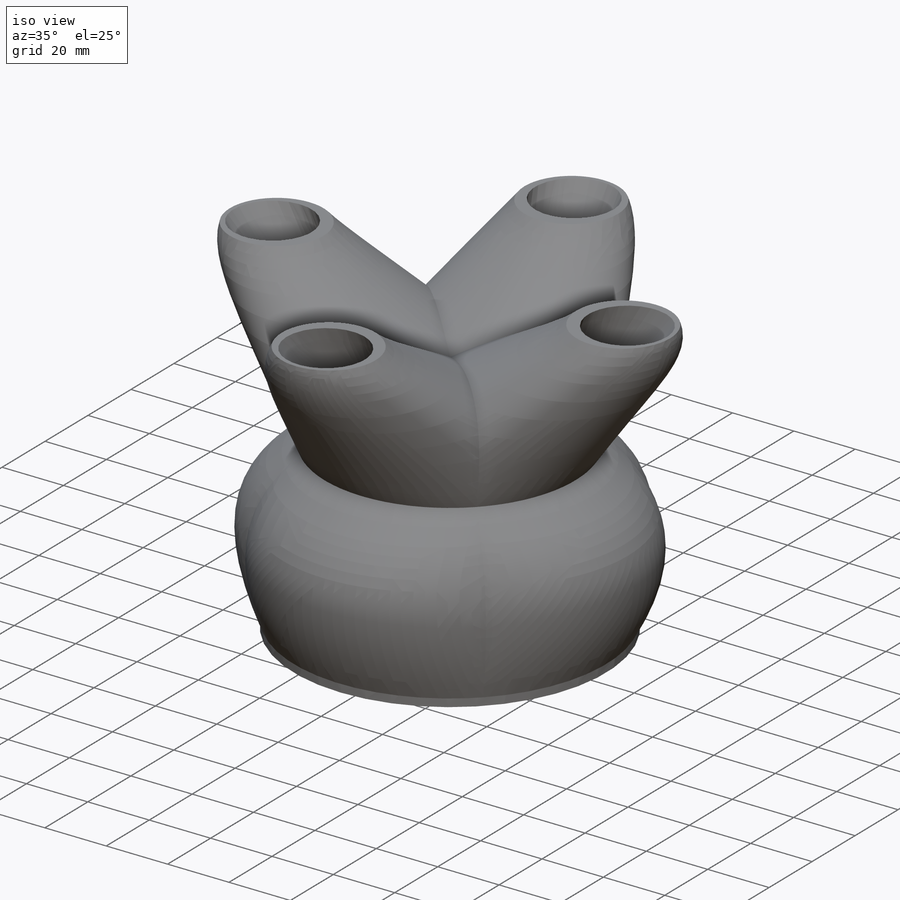
[diagram: iso view]
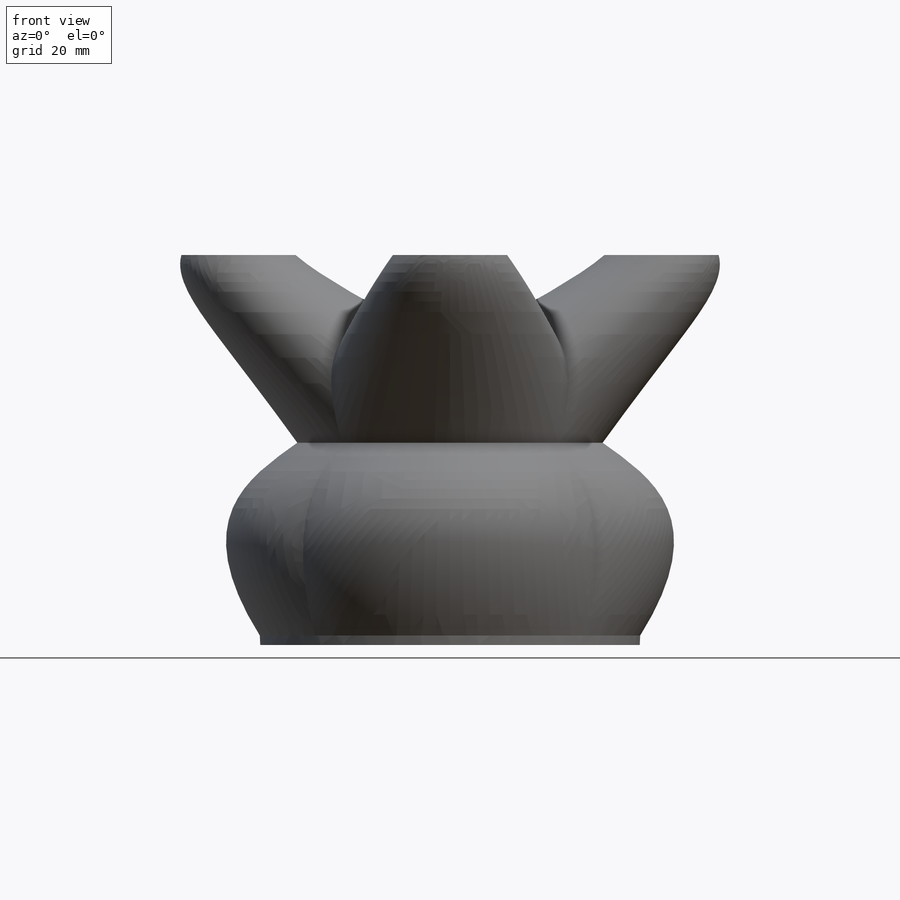
[diagram: front view]
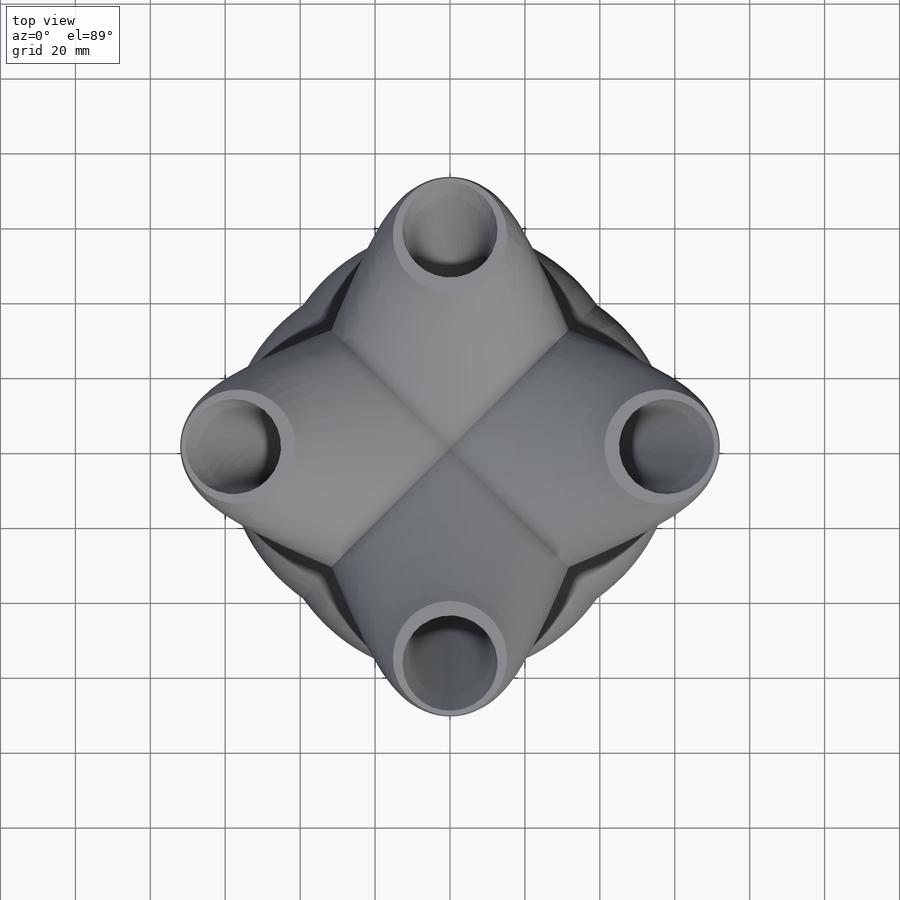
[diagram: top view]
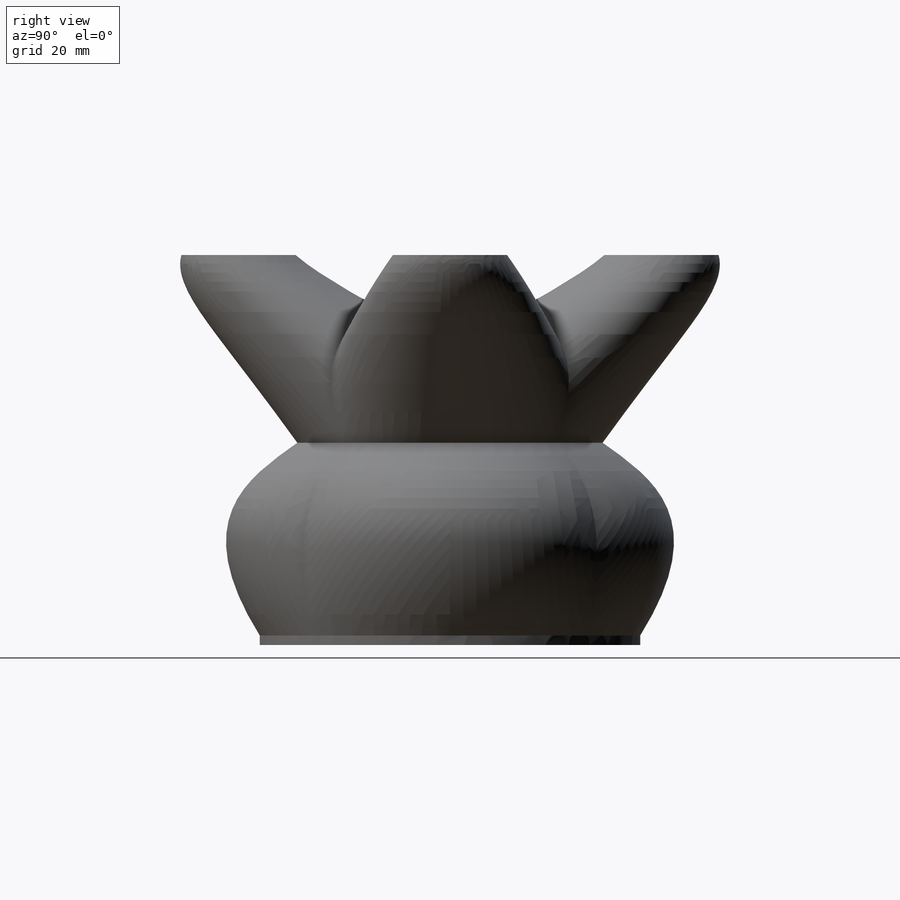
[diagram: right view]
SOLIDWORKS PART (.sldprt)
format: sldprt  version: not decoded by parser v0  size: 777,728 bytes
history: native  units: mm
features: sketch x9, plane x3, pattern_circular x2, boolean_combine x2, material x1, extrude x1, shell x1, fillet x1, cut_extrude x1 (+13 scaffold rows collapsed)
feature tree (34):
  scaffold x13  (default folders/planes/origin — collapsed)
  material  "Material <not specified>"
  plane  "Plane1"  Offset=101.6mm
  sketch  "Sketch1"  dims[D1=30.48mm]
  sketch  "Sketch2"  dims[D1=101.6mm]
  sketch  "Sketch3"
  sketch  "Sketch4"  dims[D1=25.4mm]
  plane  "Plane3"  Offset=2.54mm
  plane  "Plane2"  Offset=76.2mm
  sketch  "Sketch6"  dims[D1=20.32mm]
  pattern_circular  "CirPattern8"  Count=4 Angle=360deg
  boolean_combine  "Combine2"
  sketch  "Sketch7"  dims[D1=7.0mm]
  sketch  "Sketch8"  dims[D1=7.0mm D2=12.7mm]
  boolean_combine  "Cut-Loft2"
  pattern_circular  "CirPattern9"  Count=4 Angle=360deg
  sketch  "Sketch16"  dims[D1=8.89mm D2=12.7mm D4=12.7mm D5=4.445mm D6=4.191mm D3=4.0]
  extrude  "Boss-Extrude1"  Depth=2.54mm
  shell  "Shell1"  Thickness=2.54mm
  fillet  "Fillet1"  Radius=6.35mm
  sketch  "Sketch17"
  cut_extrude  "just the base"  [1 undecoded]
decode coverage: 12 of 17 modeling features carry decoded parameters
note: 1 parameter value undecoded
note: suppression state not decoded; provenance and decode notes live in map.json
